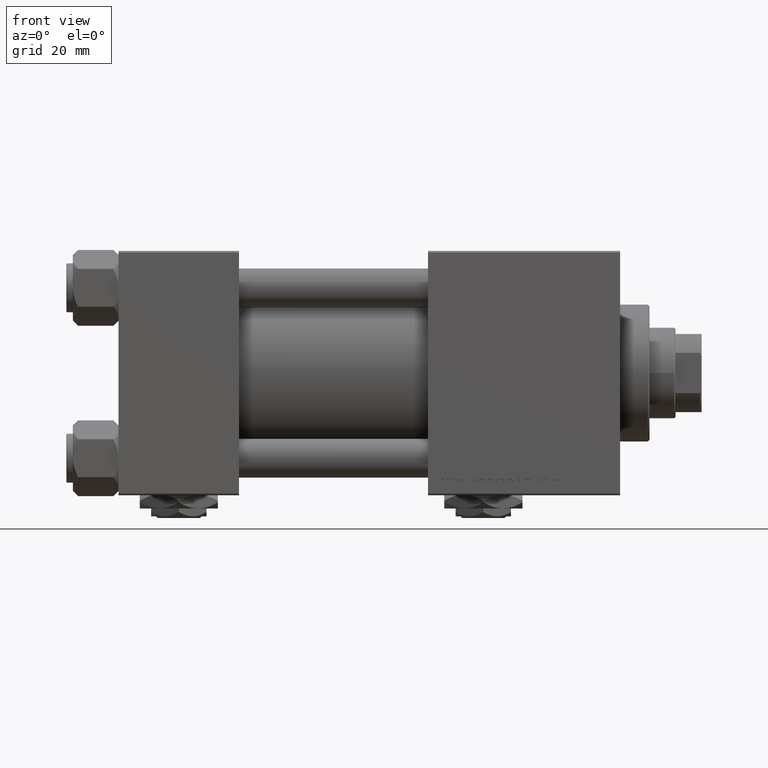
[diagram: clean part render]
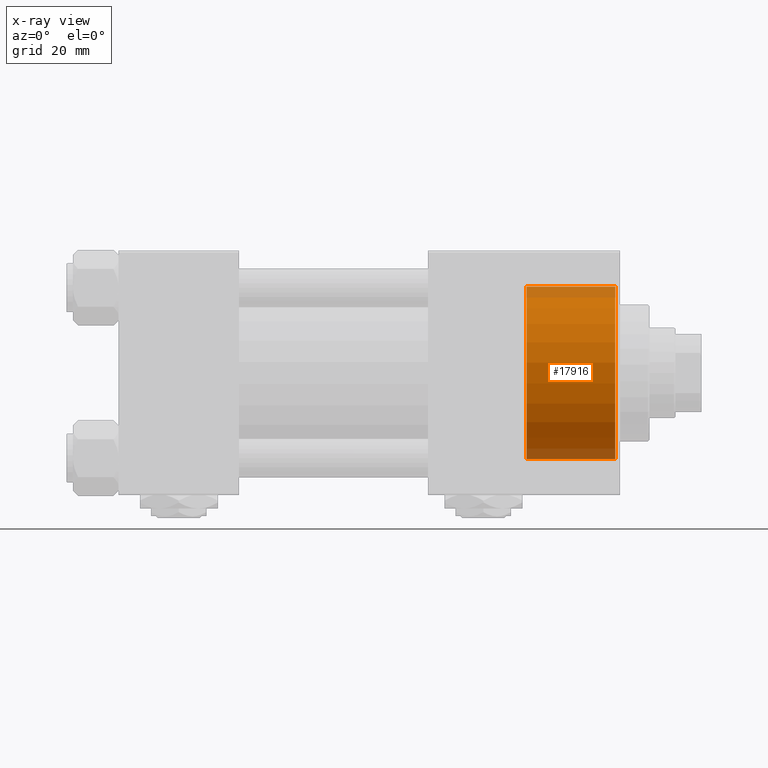
[diagram: x-ray — body ghosted, one internal face saturated and labeled with its STEP entity id]
A machine part, front view, then the same camera in x-ray: the body is ghosted and one INTERNAL B-rep face — a face not visible from any outside direction — is saturated and labeled: STEP entity #17916.
In plain terms, the highlighted cylindrical surface (partial cylindrical patch) has radius 26.5 mm, axis along (1, 0, 0).
Its self-contained STEP definition (entity closure, byte-faithful):
#274 = LINE ( 'NONE', #23781, #49881 ) ;
#1022 = AXIS2_PLACEMENT_3D ( 'NONE', #12919, #49891, #5243 ) ;
#1409 = VERTEX_POINT ( 'NONE', #33965 ) ;
#1880 = AXIS2_PLACEMENT_3D ( 'NONE', #13088, #25757, #45315 ) ;
#2728 = DIRECTION ( 'NONE',  ( 1.000000000000000000, 0.000000000000000000, 0.000000000000000000 ) ) ;
#2732 = CIRCLE ( 'NONE', #25490, 26.50000000000000355 ) ;
#2866 = EDGE_CURVE ( 'NONE', #43706, #1409, #274, .T. ) ;
#3244 = VECTOR ( 'NONE', #24500, 1000.000000000000000 ) ;
#5243 = DIRECTION ( 'NONE',  ( 0.000000000000000000, 0.000000000000000000, -1.000000000000000000 ) ) ;
#6690 = CARTESIAN_POINT ( 'NONE',  ( 152.5000000000000568, 0.000000000000000000, 0.000000000000000000 ) ) ;
#8389 = CARTESIAN_POINT ( 'NONE',  ( 125.2999999999999972, 0.000000000000000000, -26.50000000000000355 ) ) ;
#12919 = CARTESIAN_POINT ( 'NONE',  ( 125.2999999999999972, 0.000000000000000000, 0.000000000000000000 ) ) ;
#13088 = CARTESIAN_POINT ( 'NONE',  ( 125.2999999999999972, 0.000000000000000000, 0.000000000000000000 ) ) ;
#17916 = ADVANCED_FACE ( 'NONE', ( #33768 ), #33508, .F. ) ;
#18331 = EDGE_CURVE ( 'NONE', #1409, #47075, #2732, .T. ) ;
#19348 = DIRECTION ( 'NONE',  ( 0.000000000000000000, 0.000000000000000000, 1.000000000000000000 ) ) ;
#21303 = LINE ( 'NONE', #8389, #3244 ) ;
#22242 = ORIENTED_EDGE ( 'NONE', *, *, #34187, .F. ) ;
#23781 = CARTESIAN_POINT ( 'NONE',  ( 125.2999999999999972, 3.245314017740486554E-15, 26.50000000000000355 ) ) ;
#24500 = DIRECTION ( 'NONE',  ( 1.000000000000000000, -0.000000000000000000, -0.000000000000000000 ) ) ;
#24639 = CIRCLE ( 'NONE', #1880, 26.50000000000000355 ) ;
#25490 = AXIS2_PLACEMENT_3D ( 'NONE', #6690, #2728, #19348 ) ;
#25757 = DIRECTION ( 'NONE',  ( 1.000000000000000000, 0.000000000000000000, 0.000000000000000000 ) ) ;
#30672 = CARTESIAN_POINT ( 'NONE',  ( 125.2999999999999972, 3.245314017740486554E-15, 26.50000000000000355 ) ) ;
#33508 = CYLINDRICAL_SURFACE ( 'NONE', #1022, 26.50000000000000355 ) ;
#33768 = FACE_OUTER_BOUND ( 'NONE', #39363, .T. ) ;
#33965 = CARTESIAN_POINT ( 'NONE',  ( 152.5000000000000568, 3.245314017740486554E-15, 26.50000000000000355 ) ) ;
#34187 = EDGE_CURVE ( 'NONE', #36338, #47075, #21303, .T. ) ;
#36338 = VERTEX_POINT ( 'NONE', #42997 ) ;
#39363 = EDGE_LOOP ( 'NONE', ( #50012, #43945, #43761, #22242 ) ) ;
#42997 = CARTESIAN_POINT ( 'NONE',  ( 125.2999999999999972, 0.000000000000000000, -26.50000000000000355 ) ) ;
#43706 = VERTEX_POINT ( 'NONE', #30672 ) ;
#43761 = ORIENTED_EDGE ( 'NONE', *, *, #18331, .T. ) ;
#43945 = ORIENTED_EDGE ( 'NONE', *, *, #2866, .T. ) ;
#44143 = DIRECTION ( 'NONE',  ( 1.000000000000000000, -0.000000000000000000, -0.000000000000000000 ) ) ;
#45315 = DIRECTION ( 'NONE',  ( 0.000000000000000000, 0.000000000000000000, -1.000000000000000000 ) ) ;
#47075 = VERTEX_POINT ( 'NONE', #48138 ) ;
#48138 = CARTESIAN_POINT ( 'NONE',  ( 152.5000000000000568, 0.000000000000000000, -26.50000000000000355 ) ) ;
#49881 = VECTOR ( 'NONE', #44143, 1000.000000000000000 ) ;
#49891 = DIRECTION ( 'NONE',  ( 1.000000000000000000, -0.000000000000000000, -0.000000000000000000 ) ) ;
#50012 = ORIENTED_EDGE ( 'NONE', *, *, #50168, .F. ) ;
#50168 = EDGE_CURVE ( 'NONE', #43706, #36338, #24639, .T. ) ;